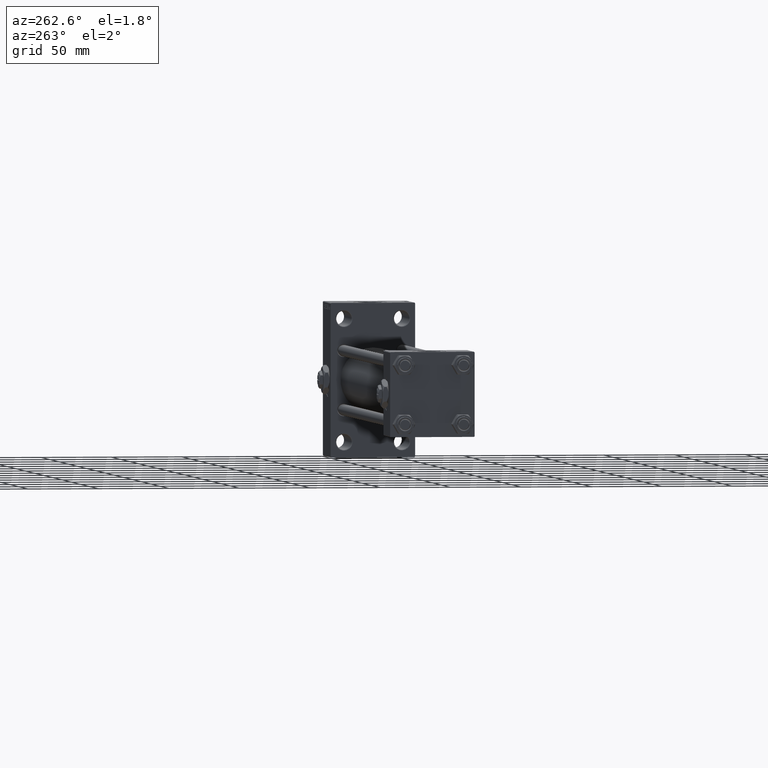
[diagram: clean part render]
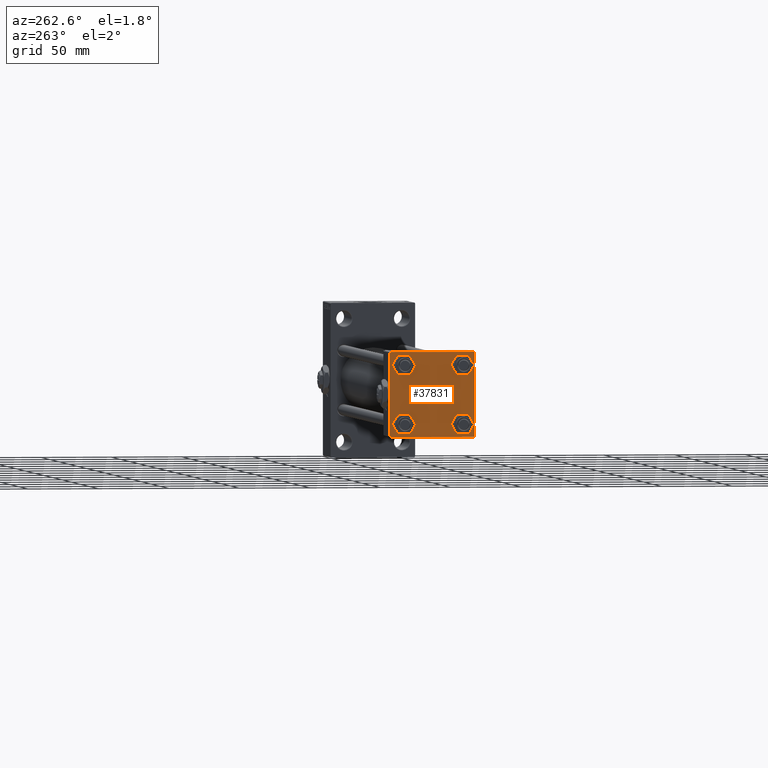
[diagram: same view with one face highlighted and labeled with its STEP entity id]
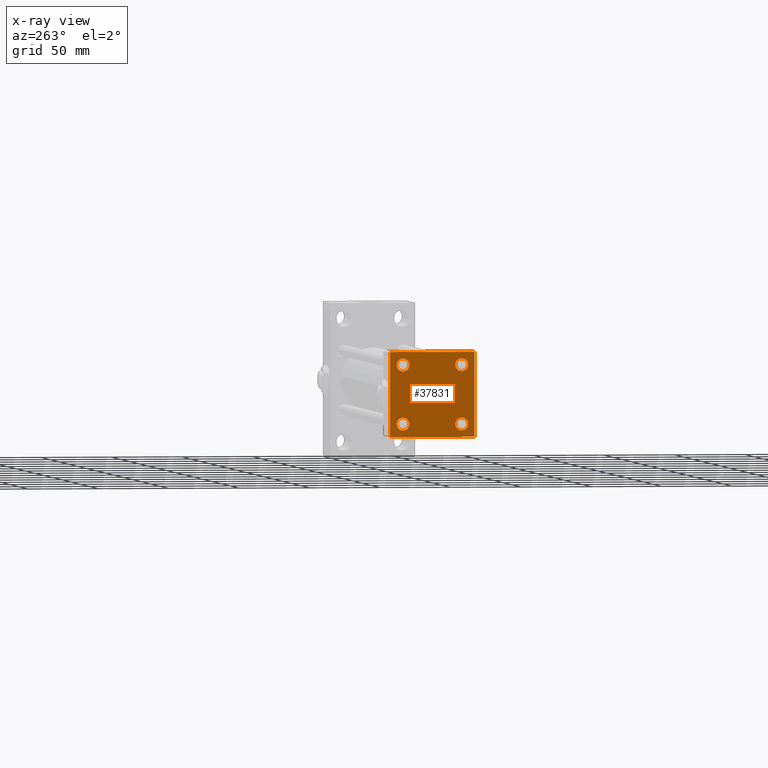
[diagram: x-ray of the same camera — body ghosted, the highlighted face saturated]
A machine part, auxiliary view. The second image highlights one B-rep face of the part: STEP entity #37831.
The next image is the same camera in x-ray: the body ghosted, the highlighted face saturated — about 0% of this face is hidden behind the body in this view.
In plain terms, the highlighted planar face has unit normal (-1, 0, 0).
Its self-contained STEP definition (entity closure, byte-faithful):
#237 = VERTEX_POINT ( 'NONE', #42084 ) ;
#827 = EDGE_CURVE ( 'NONE', #51627, #24056, #37991, .T. ) ;
#964 = FACE_BOUND ( 'NONE', #6487, .T. ) ;
#1136 = CARTESIAN_POINT ( 'NONE',  ( -0.000000000000000000, -29.74999999999999645, 29.74999999999999645 ) ) ;
#1479 = CARTESIAN_POINT ( 'NONE',  ( 0.000000000000000000, 0.000000000000000000, 0.000000000000000000 ) ) ;
#1763 = AXIS2_PLACEMENT_3D ( 'NONE', #46208, #28134, #11178 ) ;
#2431 = CARTESIAN_POINT ( 'NONE',  ( 0.000000000000000000, -20.84999999999999076, 20.85000000000000497 ) ) ;
#3248 = EDGE_LOOP ( 'NONE', ( #8937, #24773, #9745, #15819, #25157, #40802, #17397, #36532 ) ) ;
#3276 = CARTESIAN_POINT ( 'NONE',  ( 0.000000000000000000, 20.84999999999999787, -20.85000000000000142 ) ) ;
#3777 = DIRECTION ( 'NONE',  ( 0.000000000000000000, 0.000000000000000000, 1.000000000000000000 ) ) ;
#4157 = ORIENTED_EDGE ( 'NONE', *, *, #18856, .T. ) ;
#4375 = LINE ( 'NONE', #52359, #23255 ) ;
#4425 = EDGE_CURVE ( 'NONE', #50844, #50365, #19062, .T. ) ;
#4493 = ORIENTED_EDGE ( 'NONE', *, *, #25951, .T. ) ;
#4543 = CARTESIAN_POINT ( 'NONE',  ( 0.000000000000000000, 20.84999999999999787, -16.34999999999998366 ) ) ;
#5211 = FACE_BOUND ( 'NONE', #47512, .T. ) ;
#5605 = CIRCLE ( 'NONE', #16619, 4.500000000000017764 ) ;
#6487 = EDGE_LOOP ( 'NONE', ( #40241, #33639 ) ) ;
#6972 = LINE ( 'NONE', #35342, #32777 ) ;
#7244 = DIRECTION ( 'NONE',  ( 0.000000000000000000, -0.7071067811865474617, 0.7071067811865474617 ) ) ;
#7530 = CARTESIAN_POINT ( 'NONE',  ( 0.000000000000000000, 29.74999999999957723, -29.75000000000040501 ) ) ;
#8698 = CARTESIAN_POINT ( 'NONE',  ( 0.000000000000000000, -20.84999999999999076, -16.34999999999998721 ) ) ;
#8925 = DIRECTION ( 'NONE',  ( 0.000000000000000000, -1.000000000000000000, -1.156482317317871725E-16 ) ) ;
#8937 = ORIENTED_EDGE ( 'NONE', *, *, #26488, .T. ) ;
#9094 = CARTESIAN_POINT ( 'NONE',  ( 0.000000000000000000, -20.84999999999999076, 25.35000000000002274 ) ) ;
#9229 = CARTESIAN_POINT ( 'NONE',  ( 0.000000000000000000, -30.00000000000000000, 29.49999999999999289 ) ) ;
#9439 = FACE_OUTER_BOUND ( 'NONE', #3248, .T. ) ;
#9563 = VERTEX_POINT ( 'NONE', #16273 ) ;
#9745 = ORIENTED_EDGE ( 'NONE', *, *, #19236, .T. ) ;
#11178 = DIRECTION ( 'NONE',  ( 0.000000000000000000, 0.000000000000000000, 1.000000000000000000 ) ) ;
#11321 = DIRECTION ( 'NONE',  ( 0.000000000000000000, 0.000000000000000000, 1.000000000000000000 ) ) ;
#11492 = LINE ( 'NONE', #7530, #21291 ) ;
#11589 = DIRECTION ( 'NONE',  ( 1.000000000000000000, -0.000000000000000000, 0.000000000000000000 ) ) ;
#11910 = DIRECTION ( 'NONE',  ( 0.000000000000000000, -1.000000000000000000, -1.156482317317871725E-16 ) ) ;
#12324 = DIRECTION ( 'NONE',  ( 1.000000000000000000, -0.000000000000000000, 0.000000000000000000 ) ) ;
#12947 = VERTEX_POINT ( 'NONE', #33996 ) ;
#13666 = DIRECTION ( 'NONE',  ( -0.000000000000000000, 0.000000000000000000, 1.000000000000000000 ) ) ;
#13969 = EDGE_CURVE ( 'NONE', #25867, #22881, #48461, .T. ) ;
#13991 = VERTEX_POINT ( 'NONE', #24862 ) ;
#14370 = EDGE_LOOP ( 'NONE', ( #4157, #51528 ) ) ;
#14550 = EDGE_CURVE ( 'NONE', #13991, #37068, #22048, .T. ) ;
#14809 = CARTESIAN_POINT ( 'NONE',  ( 0.000000000000000000, -29.50000000000000000, -30.00000000000000711 ) ) ;
#15632 = EDGE_CURVE ( 'NONE', #51670, #47054, #38027, .T. ) ;
#15819 = ORIENTED_EDGE ( 'NONE', *, *, #33764, .T. ) ;
#16273 = CARTESIAN_POINT ( 'NONE',  ( 0.000000000000000000, 29.49999999999997868, -30.00000000000000000 ) ) ;
#16619 = AXIS2_PLACEMENT_3D ( 'NONE', #27891, #40882, #3777 ) ;
#16629 = CARTESIAN_POINT ( 'NONE',  ( 0.000000000000000000, -30.00000000000000000, 29.99999999999999289 ) ) ;
#17397 = ORIENTED_EDGE ( 'NONE', *, *, #25295, .F. ) ;
#17399 = FACE_BOUND ( 'NONE', #14370, .T. ) ;
#17666 = VERTEX_POINT ( 'NONE', #49381 ) ;
#17706 = AXIS2_PLACEMENT_3D ( 'NONE', #2431, #22322, #39277 ) ;
#17921 = VERTEX_POINT ( 'NONE', #52260 ) ;
#17973 = CARTESIAN_POINT ( 'NONE',  ( 0.000000000000000000, 20.84999999999999787, 20.85000000000000142 ) ) ;
#18856 = EDGE_CURVE ( 'NONE', #37068, #13991, #26317, .T. ) ;
#18921 = DIRECTION ( 'NONE',  ( 1.000000000000000000, -0.000000000000000000, 0.000000000000000000 ) ) ;
#18944 = CARTESIAN_POINT ( 'NONE',  ( 0.000000000000000000, 29.99999999999999289, 29.50000000000000000 ) ) ;
#18982 = VECTOR ( 'NONE', #8925, 1000.000000000000000 ) ;
#19062 = CIRCLE ( 'NONE', #27532, 4.500000000000017764 ) ;
#19236 = EDGE_CURVE ( 'NONE', #9563, #51418, #27813, .T. ) ;
#19359 = EDGE_CURVE ( 'NONE', #12947, #237, #23785, .T. ) ;
#19738 = ORIENTED_EDGE ( 'NONE', *, *, #4425, .T. ) ;
#19756 = EDGE_CURVE ( 'NONE', #17921, #9563, #11492, .T. ) ;
#20542 = DIRECTION ( 'NONE',  ( 0.000000000000000000, 0.000000000000000000, -1.000000000000000000 ) ) ;
#21291 = VECTOR ( 'NONE', #48079, 999.9999999999998863 ) ;
#21372 = FACE_BOUND ( 'NONE', #22596, .T. ) ;
#22048 = CIRCLE ( 'NONE', #41515, 4.500000000000017764 ) ;
#22176 = CIRCLE ( 'NONE', #36607, 4.500000000000017764 ) ;
#22322 = DIRECTION ( 'NONE',  ( 1.000000000000000000, -0.000000000000000000, 0.000000000000000000 ) ) ;
#22596 = EDGE_LOOP ( 'NONE', ( #4493, #39049 ) ) ;
#22881 = VERTEX_POINT ( 'NONE', #18944 ) ;
#23255 = VECTOR ( 'NONE', #20542, 1000.000000000000000 ) ;
#23670 = VECTOR ( 'NONE', #32037, 1000.000000000000114 ) ;
#23785 = CIRCLE ( 'NONE', #44948, 4.500000000000017764 ) ;
#24056 = VERTEX_POINT ( 'NONE', #47769 ) ;
#24773 = ORIENTED_EDGE ( 'NONE', *, *, #19756, .T. ) ;
#24862 = CARTESIAN_POINT ( 'NONE',  ( 0.000000000000000000, 20.84999999999999787, -25.35000000000001918 ) ) ;
#25157 = ORIENTED_EDGE ( 'NONE', *, *, #38551, .F. ) ;
#25295 = EDGE_CURVE ( 'NONE', #25867, #24056, #49214, .T. ) ;
#25867 = VERTEX_POINT ( 'NONE', #32870 ) ;
#25951 = EDGE_CURVE ( 'NONE', #237, #12947, #35985, .T. ) ;
#26027 = CARTESIAN_POINT ( 'NONE',  ( 0.000000000000000000, -20.84999999999999076, -25.35000000000002274 ) ) ;
#26317 = CIRCLE ( 'NONE', #1763, 4.500000000000017764 ) ;
#26488 = EDGE_CURVE ( 'NONE', #22881, #17921, #4375, .T. ) ;
#26986 = AXIS2_PLACEMENT_3D ( 'NONE', #1479, #49989, #13666 ) ;
#27236 = CARTESIAN_POINT ( 'NONE',  ( 0.000000000000000000, 20.84999999999999787, 20.85000000000000142 ) ) ;
#27532 = AXIS2_PLACEMENT_3D ( 'NONE', #36722, #12324, #40167 ) ;
#27813 = LINE ( 'NONE', #44250, #45818 ) ;
#27891 = CARTESIAN_POINT ( 'NONE',  ( 0.000000000000000000, -20.84999999999999076, 20.85000000000000497 ) ) ;
#28134 = DIRECTION ( 'NONE',  ( 1.000000000000000000, -0.000000000000000000, 0.000000000000000000 ) ) ;
#29116 = CARTESIAN_POINT ( 'NONE',  ( 0.000000000000000000, -20.84999999999999076, 16.34999999999998721 ) ) ;
#32037 = DIRECTION ( 'NONE',  ( 0.000000000000000000, 0.7071067811865474617, -0.7071067811865474617 ) ) ;
#32591 = EDGE_CURVE ( 'NONE', #47054, #51670, #5605, .T. ) ;
#32777 = VECTOR ( 'NONE', #7244, 1000.000000000000114 ) ;
#32870 = CARTESIAN_POINT ( 'NONE',  ( 0.000000000000000000, 29.49999999999999289, 30.00000000000000000 ) ) ;
#33639 = ORIENTED_EDGE ( 'NONE', *, *, #15632, .T. ) ;
#33764 = EDGE_CURVE ( 'NONE', #51418, #17666, #6972, .T. ) ;
#33996 = CARTESIAN_POINT ( 'NONE',  ( 0.000000000000000000, 20.84999999999999787, 16.34999999999998366 ) ) ;
#34145 = DIRECTION ( 'NONE',  ( 1.000000000000000000, -0.000000000000000000, 0.000000000000000000 ) ) ;
#34391 = ORIENTED_EDGE ( 'NONE', *, *, #47970, .T. ) ;
#35342 = CARTESIAN_POINT ( 'NONE',  ( 0.000000000000000000, -29.75000000000001066, -29.75000000000001066 ) ) ;
#35985 = CIRCLE ( 'NONE', #41059, 4.500000000000017764 ) ;
#36516 = LINE ( 'NONE', #16629, #46448 ) ;
#36532 = ORIENTED_EDGE ( 'NONE', *, *, #13969, .T. ) ;
#36607 = AXIS2_PLACEMENT_3D ( 'NONE', #42298, #45040, #37815 ) ;
#36722 = CARTESIAN_POINT ( 'NONE',  ( 0.000000000000000000, -20.84999999999999076, -20.85000000000000497 ) ) ;
#37043 = DIRECTION ( 'NONE',  ( 0.000000000000000000, 0.000000000000000000, -1.000000000000000000 ) ) ;
#37068 = VERTEX_POINT ( 'NONE', #4543 ) ;
#37811 = PLANE ( 'NONE',  #26986 ) ;
#37815 = DIRECTION ( 'NONE',  ( 0.000000000000000000, 0.000000000000000000, 1.000000000000000000 ) ) ;
#37831 = ADVANCED_FACE ( 'NONE', ( #964, #5211, #17399, #21372, #9439 ), #37811, .T. ) ;
#37991 = LINE ( 'NONE', #1136, #47838 ) ;
#38027 = CIRCLE ( 'NONE', #17706, 4.500000000000017764 ) ;
#38551 = EDGE_CURVE ( 'NONE', #51627, #17666, #36516, .T. ) ;
#39049 = ORIENTED_EDGE ( 'NONE', *, *, #19359, .T. ) ;
#39277 = DIRECTION ( 'NONE',  ( 0.000000000000000000, 0.000000000000000000, 1.000000000000000000 ) ) ;
#40167 = DIRECTION ( 'NONE',  ( 0.000000000000000000, 0.000000000000000000, 1.000000000000000000 ) ) ;
#40241 = ORIENTED_EDGE ( 'NONE', *, *, #32591, .T. ) ;
#40802 = ORIENTED_EDGE ( 'NONE', *, *, #827, .T. ) ;
#40882 = DIRECTION ( 'NONE',  ( 1.000000000000000000, -0.000000000000000000, 0.000000000000000000 ) ) ;
#41059 = AXIS2_PLACEMENT_3D ( 'NONE', #27236, #11589, #11321 ) ;
#41515 = AXIS2_PLACEMENT_3D ( 'NONE', #3276, #18921, #51529 ) ;
#42084 = CARTESIAN_POINT ( 'NONE',  ( 0.000000000000000000, 20.84999999999999787, 25.35000000000001918 ) ) ;
#42298 = CARTESIAN_POINT ( 'NONE',  ( 0.000000000000000000, -20.84999999999999076, -20.85000000000000497 ) ) ;
#42469 = DIRECTION ( 'NONE',  ( -0.000000000000000000, 0.7071067811865474617, 0.7071067811865474617 ) ) ;
#44250 = CARTESIAN_POINT ( 'NONE',  ( 0.000000000000000000, 29.99999999999999289, -30.00000000000000000 ) ) ;
#44948 = AXIS2_PLACEMENT_3D ( 'NONE', #17973, #34145, #50305 ) ;
#45040 = DIRECTION ( 'NONE',  ( 1.000000000000000000, -0.000000000000000000, 0.000000000000000000 ) ) ;
#45241 = CARTESIAN_POINT ( 'NONE',  ( 0.000000000000000000, 29.99999999999999289, 30.00000000000000000 ) ) ;
#45818 = VECTOR ( 'NONE', #11910, 1000.000000000000000 ) ;
#46208 = CARTESIAN_POINT ( 'NONE',  ( 0.000000000000000000, 20.84999999999999787, -20.85000000000000142 ) ) ;
#46448 = VECTOR ( 'NONE', #37043, 1000.000000000000000 ) ;
#47054 = VERTEX_POINT ( 'NONE', #9094 ) ;
#47512 = EDGE_LOOP ( 'NONE', ( #19738, #34391 ) ) ;
#47769 = CARTESIAN_POINT ( 'NONE',  ( 0.000000000000000000, -29.49999999999998579, 29.99999999999999289 ) ) ;
#47838 = VECTOR ( 'NONE', #42469, 1000.000000000000114 ) ;
#47970 = EDGE_CURVE ( 'NONE', #50365, #50844, #22176, .T. ) ;
#48079 = DIRECTION ( 'NONE',  ( -0.000000000000000000, -0.7071067811865574537, -0.7071067811865376918 ) ) ;
#48461 = LINE ( 'NONE', #52446, #23670 ) ;
#49214 = LINE ( 'NONE', #45241, #18982 ) ;
#49381 = CARTESIAN_POINT ( 'NONE',  ( 0.000000000000000000, -30.00000000000000000, -29.50000000000001776 ) ) ;
#49989 = DIRECTION ( 'NONE',  ( -1.000000000000000000, 0.000000000000000000, -0.000000000000000000 ) ) ;
#50305 = DIRECTION ( 'NONE',  ( 0.000000000000000000, 0.000000000000000000, 1.000000000000000000 ) ) ;
#50365 = VERTEX_POINT ( 'NONE', #26027 ) ;
#50844 = VERTEX_POINT ( 'NONE', #8698 ) ;
#51418 = VERTEX_POINT ( 'NONE', #14809 ) ;
#51528 = ORIENTED_EDGE ( 'NONE', *, *, #14550, .T. ) ;
#51529 = DIRECTION ( 'NONE',  ( 0.000000000000000000, 0.000000000000000000, 1.000000000000000000 ) ) ;
#51627 = VERTEX_POINT ( 'NONE', #9229 ) ;
#51670 = VERTEX_POINT ( 'NONE', #29116 ) ;
#52260 = CARTESIAN_POINT ( 'NONE',  ( 0.000000000000000000, 29.99999999999999289, -29.50000000000000000 ) ) ;
#52359 = CARTESIAN_POINT ( 'NONE',  ( 0.000000000000000000, 29.99999999999999289, 30.00000000000000000 ) ) ;
#52446 = CARTESIAN_POINT ( 'NONE',  ( 0.000000000000000000, 29.74999999999999645, 29.74999999999999645 ) ) ;